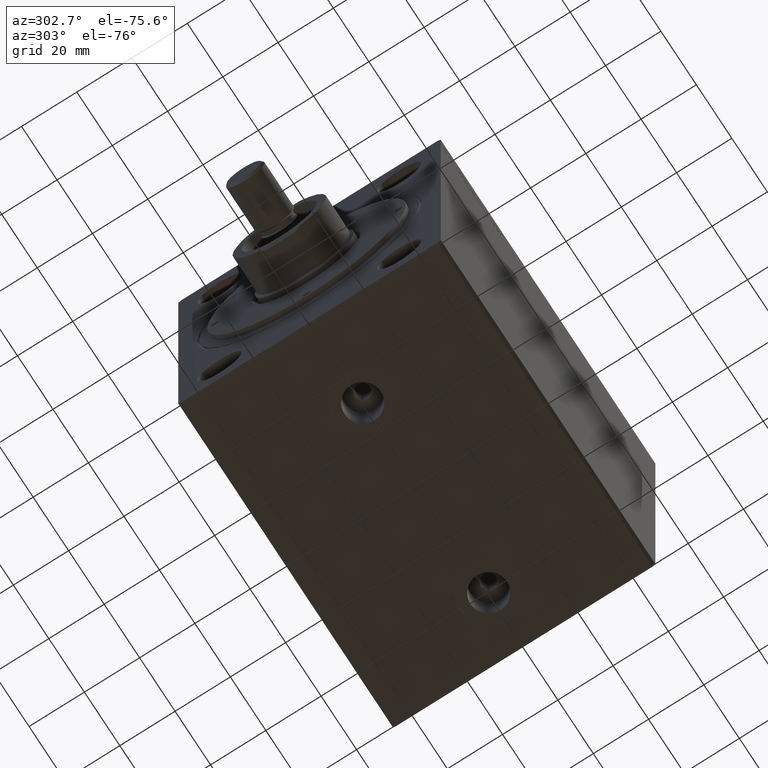
[diagram: clean part render]
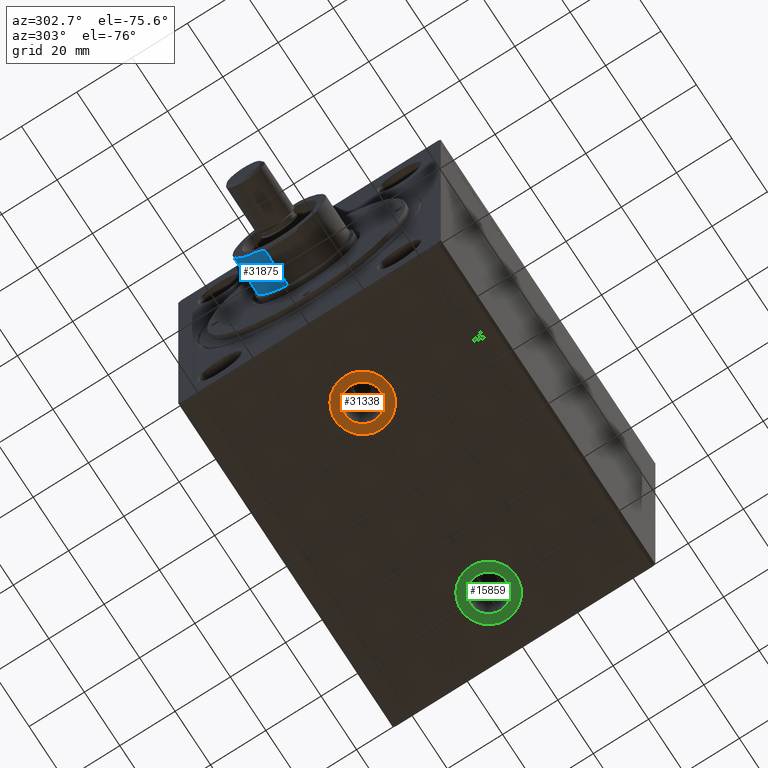
[diagram: same view with three faces highlighted in distinct colors, each labeled with its STEP entity id]
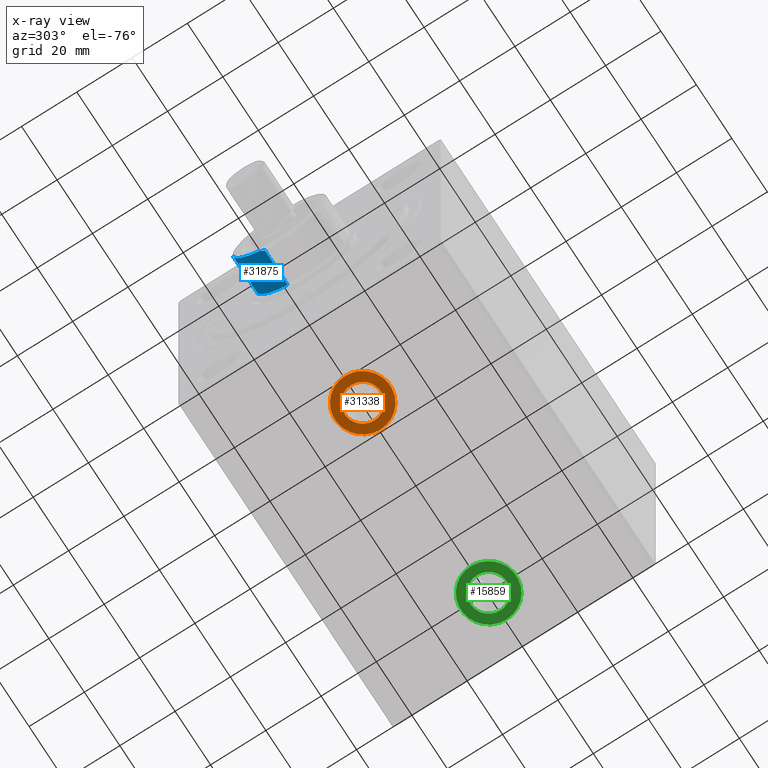
[diagram: x-ray of the same camera — body ghosted, the three highlighted faces saturated]
A machine part, auxiliary view with three faces highlighted in distinct colors.
The next image is the same camera in x-ray (body ghosted, the three faces saturated) — at least one of them is partly hidden behind the body in this view.
Their STEP definitions:

[orange] entity #31338 — the highlighted planar face has unit normal (0, 0, -1).
#283 = ORIENTED_EDGE ( 'NONE', *, *, #24312, .F. ) ;
#856 = EDGE_CURVE ( 'NONE', #32571, #31606, #25868, .T. ) ;
#2458 = CARTESIAN_POINT ( 'NONE',  ( 23.41999999999999460, 3.191269477545414310E-15, -62.39999999999999858 ) ) ;
#5956 = DIRECTION ( 'NONE',  ( -1.000000000000000000, 0.000000000000000000, 0.000000000000000000 ) ) ;
#8188 = CIRCLE ( 'NONE', #24687, 6.580000000000002736 ) ;
#10216 = FACE_OUTER_BOUND ( 'NONE', #32418, .T. ) ;
#12131 = DIRECTION ( 'NONE',  ( 0.000000000000000000, 0.000000000000000000, -1.000000000000000000 ) ) ;
#13039 = VERTEX_POINT ( 'NONE', #25911 ) ;
#13440 = CIRCLE ( 'NONE', #29192, 10.00000000000000178 ) ;
#19853 = DIRECTION ( 'NONE',  ( -1.000000000000000000, 0.000000000000000000, 0.000000000000000000 ) ) ;
#20025 = ORIENTED_EDGE ( 'NONE', *, *, #856, .T. ) ;
#20107 = EDGE_CURVE ( 'NONE', #31606, #32571, #13440, .T. ) ;
#20559 = CARTESIAN_POINT ( 'NONE',  ( 0.000000000000000000, 0.000000000000000000, -62.39999999999999858 ) ) ;
#20937 = AXIS2_PLACEMENT_3D ( 'NONE', #20559, #33306, #29955 ) ;
#23878 = DIRECTION ( 'NONE',  ( 0.000000000000000000, 0.000000000000000000, -1.000000000000000000 ) ) ;
#24312 = EDGE_CURVE ( 'NONE', #13039, #24790, #32857, .T. ) ;
#24687 = AXIS2_PLACEMENT_3D ( 'NONE', #36904, #37351, #33330 ) ;
#24790 = VERTEX_POINT ( 'NONE', #2458 ) ;
#25868 = CIRCLE ( 'NONE', #30887, 10.00000000000000178 ) ;
#25911 = CARTESIAN_POINT ( 'NONE',  ( 36.57999999999999829, 3.997087071384372957E-15, -62.39999999999999858 ) ) ;
#26587 = FACE_BOUND ( 'NONE', #43071, .T. ) ;
#29192 = AXIS2_PLACEMENT_3D ( 'NONE', #40445, #23878, #19853 ) ;
#29955 = DIRECTION ( 'NONE',  ( -1.000000000000000000, 0.000000000000000000, -0.000000000000000000 ) ) ;
#30162 = PLANE ( 'NONE',  #20937 ) ;
#30887 = AXIS2_PLACEMENT_3D ( 'NONE', #32974, #12131, #33188 ) ;
#31231 = CARTESIAN_POINT ( 'NONE',  ( 40.00000000000000000, 4.415916276692767764E-15, -62.39999999999999858 ) ) ;
#31338 = ADVANCED_FACE ( 'NONE', ( #26587, #10216 ), #30162, .T. ) ;
#31606 = VERTEX_POINT ( 'NONE', #31231 ) ;
#32418 = EDGE_LOOP ( 'NONE', ( #20025, #40722 ) ) ;
#32571 = VERTEX_POINT ( 'NONE', #33259 ) ;
#32857 = CIRCLE ( 'NONE', #42866, 6.580000000000002736 ) ;
#32974 = CARTESIAN_POINT ( 'NONE',  ( 30.00000000000000000, 3.191269477545414310E-15, -62.39999999999999858 ) ) ;
#33188 = DIRECTION ( 'NONE',  ( -1.000000000000000000, 0.000000000000000000, 0.000000000000000000 ) ) ;
#33259 = CARTESIAN_POINT ( 'NONE',  ( 19.99999999999999645, 3.191269477545414310E-15, -62.39999999999999858 ) ) ;
#33306 = DIRECTION ( 'NONE',  ( 0.000000000000000000, 0.000000000000000000, -1.000000000000000000 ) ) ;
#33330 = DIRECTION ( 'NONE',  ( -1.000000000000000000, 0.000000000000000000, 0.000000000000000000 ) ) ;
#34531 = ORIENTED_EDGE ( 'NONE', *, *, #41533, .F. ) ;
#36904 = CARTESIAN_POINT ( 'NONE',  ( 30.00000000000000000, 3.191269477545414310E-15, -62.39999999999999858 ) ) ;
#37351 = DIRECTION ( 'NONE',  ( 0.000000000000000000, 0.000000000000000000, -1.000000000000000000 ) ) ;
#40445 = CARTESIAN_POINT ( 'NONE',  ( 30.00000000000000000, 3.191269477545414310E-15, -62.39999999999999858 ) ) ;
#40722 = ORIENTED_EDGE ( 'NONE', *, *, #20107, .T. ) ;
#41533 = EDGE_CURVE ( 'NONE', #24790, #13039, #8188, .T. ) ;
#42866 = AXIS2_PLACEMENT_3D ( 'NONE', #43835, #44057, #5956 ) ;
#43071 = EDGE_LOOP ( 'NONE', ( #34531, #283 ) ) ;
#43835 = CARTESIAN_POINT ( 'NONE',  ( 30.00000000000000000, 3.191269477545414310E-15, -62.39999999999999858 ) ) ;
#44057 = DIRECTION ( 'NONE',  ( 0.000000000000000000, 0.000000000000000000, -1.000000000000000000 ) ) ;

[blue] entity #31875 — the highlighted cylindrical surface (partial cylindrical patch) has radius 16.96 mm, axis along (-1, 0, 0).
#589 = DIRECTION ( 'NONE',  ( -0.000000000000000000, -1.376177394578395099E-16, 1.000000000000000000 ) ) ;
#961 = CARTESIAN_POINT ( 'NONE',  ( 0.000000000000000000, -1.128465463554283809E-14, 81.99999999999998579 ) ) ;
#1220 = EDGE_CURVE ( 'NONE', #9799, #24897, #6676, .T. ) ;
#1485 = CARTESIAN_POINT ( 'NONE',  ( 15.28999999999999737, -7.338766926398481161, 81.99999999999998579 ) ) ;
#1748 = CARTESIAN_POINT ( 'NONE',  ( 16.00000000000000000, -5.625086665999033286, 81.28999999999999204 ) ) ;
#3731 = AXIS2_PLACEMENT_3D ( 'NONE', #32981, #9660, #6285 ) ;
#4108 = ORIENTED_EDGE ( 'NONE', *, *, #42745, .F. ) ;
#5091 = CARTESIAN_POINT ( 'NONE',  ( 15.79472063485956923, -6.208983419465954334, 81.49527936514040505 ) ) ;
#5422 = EDGE_CURVE ( 'NONE', #21756, #10868, #19961, .T. ) ;
#5841 = VECTOR ( 'NONE', #33385, 1000.000000000000000 ) ;
#5856 = CARTESIAN_POINT ( 'NONE',  ( 15.28999999999999737, -7.338766926398481161, 81.99999999999998579 ) ) ;
#6195 = CARTESIAN_POINT ( 'NONE',  ( 0.000000000000000000, -9.426815152862005997E-15, 68.49999999999998579 ) ) ;
#6285 = DIRECTION ( 'NONE',  ( 0.000000000000000000, -1.000000000000000000, 0.000000000000000000 ) ) ;
#6676 = LINE ( 'NONE', #17907, #13728 ) ;
#7397 = AXIS2_PLACEMENT_3D ( 'NONE', #6195, #23046, #12048 ) ;
#9660 = DIRECTION ( 'NONE',  ( -0.000000000000000000, -1.376177394578395099E-16, 1.000000000000000000 ) ) ;
#9799 = VERTEX_POINT ( 'NONE', #27076 ) ;
#10222 =( BOUNDED_CURVE ( )  B_SPLINE_CURVE ( 3, ( #11383, #5091, #35355, #1485 ),
 .UNSPECIFIED., .F., .F. ) 
 B_SPLINE_CURVE_WITH_KNOTS ( ( 4, 4 ),
 ( 3.479663597211701376, 3.589089608355607197 ),
 .UNSPECIFIED. ) 
 CURVE ( )  GEOMETRIC_REPRESENTATION_ITEM ( )  RATIONAL_B_SPLINE_CURVE ( ( 1.000000000000000000, 0.9990024112355896380, 0.9990024112355896380, 1.000000000000000000 ) ) 
 REPRESENTATION_ITEM ( '' )  );
#10868 = VERTEX_POINT ( 'NONE', #1748 ) ;
#11383 = CARTESIAN_POINT ( 'NONE',  ( 16.00000000000000000, -5.625086665999033286, 81.28999999999999204 ) ) ;
#12048 = DIRECTION ( 'NONE',  ( 0.000000000000000000, -1.000000000000000000, 0.000000000000000000 ) ) ;
#12138 = CARTESIAN_POINT ( 'NONE',  ( 0.000000000000000000, -16.96000000000001151, 81.99999999999998579 ) ) ;
#13728 = VECTOR ( 'NONE', #589, 1000.000000000000000 ) ;
#17907 = CARTESIAN_POINT ( 'NONE',  ( 0.000000000000000000, -16.96000000000001151, 81.99999999999998579 ) ) ;
#19336 = FACE_OUTER_BOUND ( 'NONE', #33786, .T. ) ;
#19961 = LINE ( 'NONE', #33611, #5841 ) ;
#21756 = VERTEX_POINT ( 'NONE', #38097 ) ;
#23046 = DIRECTION ( 'NONE',  ( -0.000000000000000000, -1.376177394578395099E-16, 1.000000000000000000 ) ) ;
#23186 = ORIENTED_EDGE ( 'NONE', *, *, #35025, .T. ) ;
#24897 = VERTEX_POINT ( 'NONE', #12138 ) ;
#25293 = CIRCLE ( 'NONE', #7397, 16.95999999999999730 ) ;
#25869 = DIRECTION ( 'NONE',  ( -0.000000000000000000, -1.376177394578395099E-16, 1.000000000000000000 ) ) ;
#25922 = EDGE_CURVE ( 'NONE', #10868, #27962, #10222, .T. ) ;
#26702 = CYLINDRICAL_SURFACE ( 'NONE', #3731, 16.96000000000000085 ) ;
#27076 = CARTESIAN_POINT ( 'NONE',  ( 2.140682604909572709E-15, -16.96000000000000796, 68.49999999999998579 ) ) ;
#27962 = VERTEX_POINT ( 'NONE', #5856 ) ;
#30247 = ORIENTED_EDGE ( 'NONE', *, *, #5422, .T. ) ;
#31875 = ADVANCED_FACE ( 'NONE', ( #19336 ), #26702, .T. ) ;
#32007 = ORIENTED_EDGE ( 'NONE', *, *, #1220, .F. ) ;
#32981 = CARTESIAN_POINT ( 'NONE',  ( 0.000000000000000000, -1.128465463554283809E-14, 81.99999999999998579 ) ) ;
#33385 = DIRECTION ( 'NONE',  ( -0.000000000000000000, -1.376177394578395099E-16, 1.000000000000000000 ) ) ;
#33611 = CARTESIAN_POINT ( 'NONE',  ( 16.00000000000000000, -5.625086665999033286, 81.99999999999998579 ) ) ;
#33786 = EDGE_LOOP ( 'NONE', ( #32007, #23186, #30247, #41168, #4108 ) ) ;
#35025 = EDGE_CURVE ( 'NONE', #9799, #21756, #25293, .T. ) ;
#35355 = CARTESIAN_POINT ( 'NONE',  ( 15.55781763642340287, -6.780780591366648125, 81.73218236357656963 ) ) ;
#36839 = CIRCLE ( 'NONE', #43289, 16.96000000000000085 ) ;
#38097 = CARTESIAN_POINT ( 'NONE',  ( 16.00000000000000000, -5.625086665999031510, 68.49999999999998579 ) ) ;
#39520 = DIRECTION ( 'NONE',  ( 0.000000000000000000, -1.000000000000000000, 0.000000000000000000 ) ) ;
#41168 = ORIENTED_EDGE ( 'NONE', *, *, #25922, .T. ) ;
#42745 = EDGE_CURVE ( 'NONE', #24897, #27962, #36839, .T. ) ;
#43289 = AXIS2_PLACEMENT_3D ( 'NONE', #961, #25869, #39520 ) ;

[green] entity #15859 — the highlighted planar face has unit normal (0, 0, -1).
#1325 = FACE_OUTER_BOUND ( 'NONE', #21600, .T. ) ;
#1550 = PLANE ( 'NONE',  #6262 ) ;
#2205 = DIRECTION ( 'NONE',  ( 0.000000000000000000, 0.000000000000000000, -1.000000000000000000 ) ) ;
#4386 = EDGE_CURVE ( 'NONE', #36757, #26910, #12250, .T. ) ;
#4885 = DIRECTION ( 'NONE',  ( 0.000000000000000000, 0.000000000000000000, -1.000000000000000000 ) ) ;
#4905 = CARTESIAN_POINT ( 'NONE',  ( 100.9999999999999858, -5.789088070571289040E-15, -62.39999999999999858 ) ) ;
#6262 = AXIS2_PLACEMENT_3D ( 'NONE', #19082, #2205, #26243 ) ;
#8361 = ORIENTED_EDGE ( 'NONE', *, *, #10565, .T. ) ;
#9191 = FACE_BOUND ( 'NONE', #38492, .T. ) ;
#10565 = EDGE_CURVE ( 'NONE', #19778, #19145, #20519, .T. ) ;
#12250 = CIRCLE ( 'NONE', #35861, 6.580000000000002736 ) ;
#14163 = CARTESIAN_POINT ( 'NONE',  ( 94.41999999999998749, -5.789088070571289040E-15, -62.39999999999999858 ) ) ;
#14360 = ORIENTED_EDGE ( 'NONE', *, *, #4386, .F. ) ;
#14766 = CARTESIAN_POINT ( 'NONE',  ( 100.9999999999999858, -5.789088070571289040E-15, -62.39999999999999858 ) ) ;
#15661 = DIRECTION ( 'NONE',  ( 0.000000000000000000, 0.000000000000000000, -1.000000000000000000 ) ) ;
#15859 = ADVANCED_FACE ( 'NONE', ( #9191, #1325 ), #1550, .T. ) ;
#18609 = DIRECTION ( 'NONE',  ( -1.000000000000000000, 0.000000000000000000, 0.000000000000000000 ) ) ;
#19082 = CARTESIAN_POINT ( 'NONE',  ( 100.9999999999999858, -5.789088070571289040E-15, -62.39999999999999858 ) ) ;
#19145 = VERTEX_POINT ( 'NONE', #36074 ) ;
#19778 = VERTEX_POINT ( 'NONE', #24044 ) ;
#20236 = DIRECTION ( 'NONE',  ( -1.000000000000000000, 0.000000000000000000, 0.000000000000000000 ) ) ;
#20237 = DIRECTION ( 'NONE',  ( -1.000000000000000000, 0.000000000000000000, 0.000000000000000000 ) ) ;
#20519 = CIRCLE ( 'NONE', #27648, 9.999999999999994671 ) ;
#21600 = EDGE_LOOP ( 'NONE', ( #8361, #37545 ) ) ;
#23368 = DIRECTION ( 'NONE',  ( 0.000000000000000000, 0.000000000000000000, -1.000000000000000000 ) ) ;
#23893 = ORIENTED_EDGE ( 'NONE', *, *, #36640, .F. ) ;
#24044 = CARTESIAN_POINT ( 'NONE',  ( 91.00000000000000000, -5.789088070571289040E-15, -62.39999999999999858 ) ) ;
#25328 = AXIS2_PLACEMENT_3D ( 'NONE', #26502, #23368, #20237 ) ;
#26243 = DIRECTION ( 'NONE',  ( -1.000000000000000000, 0.000000000000000000, -0.000000000000000000 ) ) ;
#26502 = CARTESIAN_POINT ( 'NONE',  ( 100.9999999999999858, -5.789088070571289040E-15, -62.39999999999999858 ) ) ;
#26822 = EDGE_CURVE ( 'NONE', #19145, #19778, #29375, .T. ) ;
#26831 = CARTESIAN_POINT ( 'NONE',  ( 107.5799999999999983, -4.983270476732330787E-15, -62.39999999999999858 ) ) ;
#26910 = VERTEX_POINT ( 'NONE', #26831 ) ;
#26944 = DIRECTION ( 'NONE',  ( 0.000000000000000000, 0.000000000000000000, -1.000000000000000000 ) ) ;
#27648 = AXIS2_PLACEMENT_3D ( 'NONE', #4905, #15661, #18609 ) ;
#29100 = DIRECTION ( 'NONE',  ( -1.000000000000000000, 0.000000000000000000, 0.000000000000000000 ) ) ;
#29375 = CIRCLE ( 'NONE', #33657, 9.999999999999994671 ) ;
#33174 = CIRCLE ( 'NONE', #25328, 6.580000000000002736 ) ;
#33657 = AXIS2_PLACEMENT_3D ( 'NONE', #14766, #4885, #29100 ) ;
#35861 = AXIS2_PLACEMENT_3D ( 'NONE', #43967, #26944, #20236 ) ;
#36074 = CARTESIAN_POINT ( 'NONE',  ( 110.9999999999999858, -4.564441271423936770E-15, -62.39999999999999858 ) ) ;
#36640 = EDGE_CURVE ( 'NONE', #26910, #36757, #33174, .T. ) ;
#36757 = VERTEX_POINT ( 'NONE', #14163 ) ;
#37545 = ORIENTED_EDGE ( 'NONE', *, *, #26822, .T. ) ;
#38492 = EDGE_LOOP ( 'NONE', ( #14360, #23893 ) ) ;
#43967 = CARTESIAN_POINT ( 'NONE',  ( 100.9999999999999858, -5.789088070571289040E-15, -62.39999999999999858 ) ) ;